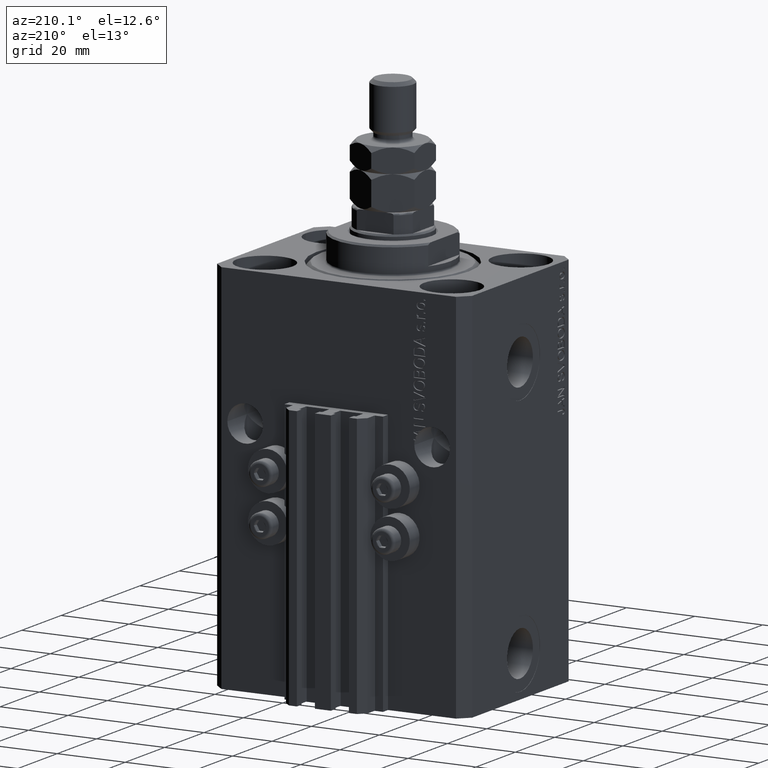
[diagram: clean part render]
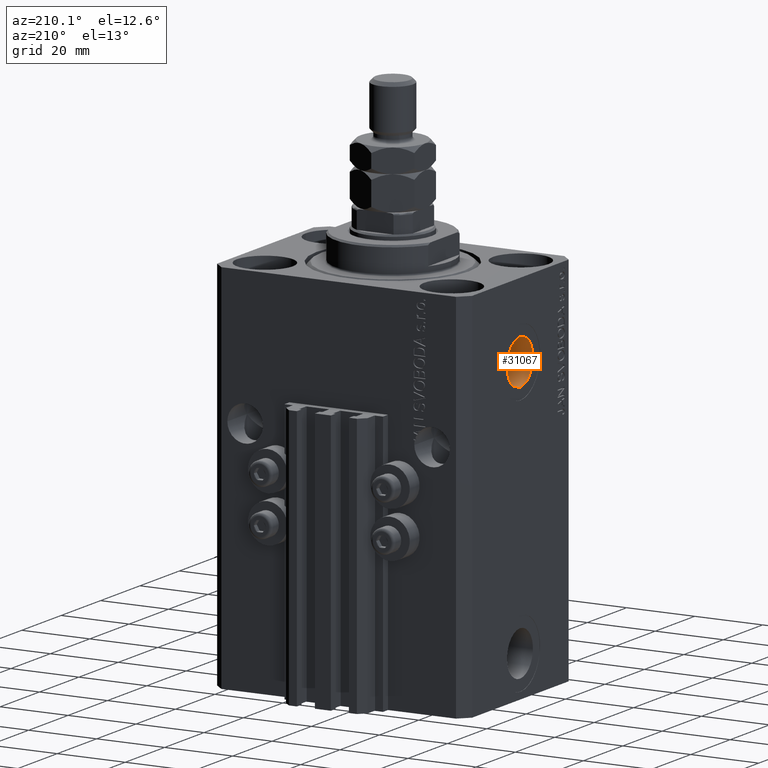
[diagram: same view with one face highlighted and labeled with its STEP entity id]
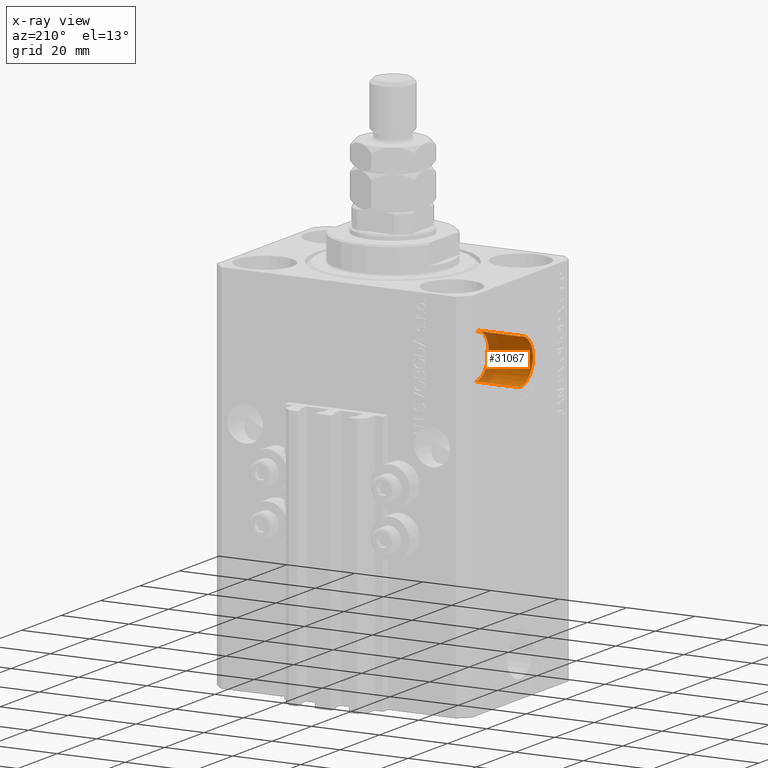
[diagram: x-ray of the same camera — body ghosted, the highlighted face saturated]
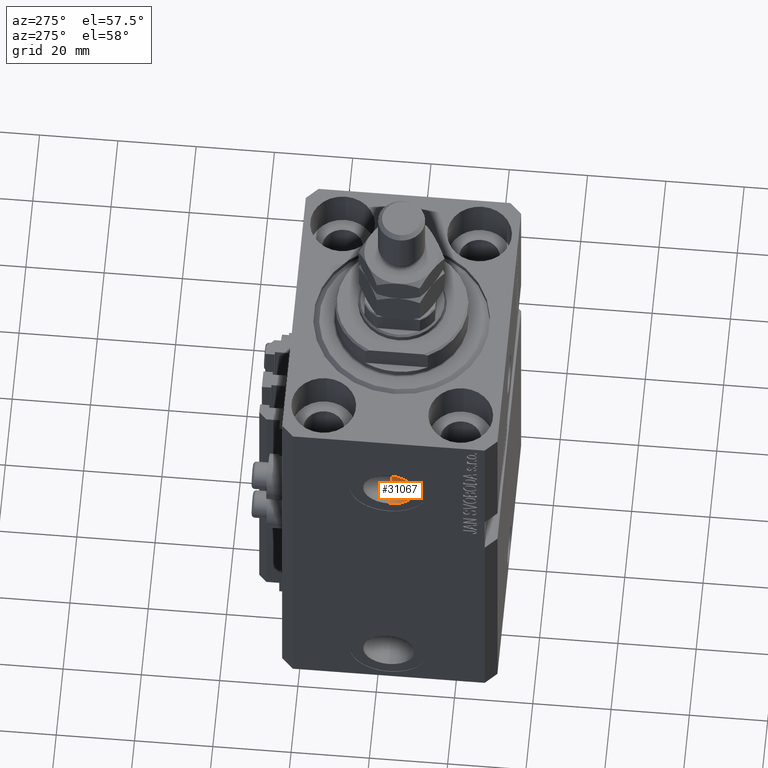
[diagram: same view with one face highlighted and labeled with its STEP entity id]
A machine part, auxiliary view. The second image highlights one B-rep face of the part: STEP entity #31067.
The next image is the same camera in x-ray: the body ghosted, the highlighted face saturated — about 24% of this face is hidden behind the body in this view.
A second angle (auxiliary view) of the same face is appended — the face is thin or edge-on in the first view.
In plain terms, the highlighted cylindrical surface (edge-blend (fillet) strip) has radius 6.58 mm, axis along (-1, -0, -0).
Its self-contained STEP definition (entity closure, byte-faithful):
#181 = VERTEX_POINT ( 'NONE', #19964 ) ;
#820 = LINE ( 'NONE', #1294, #2920 ) ;
#1294 = CARTESIAN_POINT ( 'NONE',  ( -24.39999999999999147, 0.000000000000000000, -15.41999999999999993 ) ) ;
#1414 = DIRECTION ( 'NONE',  ( 0.000000000000000000, 0.000000000000000000, 1.000000000000000000 ) ) ;
#2261 = ORIENTED_EDGE ( 'NONE', *, *, #7332, .F. ) ;
#2920 = VECTOR ( 'NONE', #4478, 1000.000000000000000 ) ;
#3086 = DIRECTION ( 'NONE',  ( -1.000000000000000000, -0.000000000000000000, -0.000000000000000000 ) ) ;
#4249 = VERTEX_POINT ( 'NONE', #14811 ) ;
#4478 = DIRECTION ( 'NONE',  ( -1.000000000000000000, -0.000000000000000000, -0.000000000000000000 ) ) ;
#7332 = EDGE_CURVE ( 'NONE', #4249, #181, #820, .T. ) ;
#7964 = EDGE_LOOP ( 'NONE', ( #40299, #16146, #16620, #2261 ) ) ;
#9047 = EDGE_CURVE ( 'NONE', #25853, #181, #23195, .T. ) ;
#13351 = CARTESIAN_POINT ( 'NONE',  ( -37.39999999999999147, 8.058175938389579572E-16, -28.57999999999999829 ) ) ;
#14811 = CARTESIAN_POINT ( 'NONE',  ( -24.39999999999999147, 0.000000000000000000, -15.41999999999999993 ) ) ;
#16146 = ORIENTED_EDGE ( 'NONE', *, *, #25497, .T. ) ;
#16620 = ORIENTED_EDGE ( 'NONE', *, *, #9047, .T. ) ;
#17748 = LINE ( 'NONE', #47613, #42115 ) ;
#18072 = AXIS2_PLACEMENT_3D ( 'NONE', #48353, #32719, #29517 ) ;
#19964 = CARTESIAN_POINT ( 'NONE',  ( -37.39999999999999147, 0.000000000000000000, -15.41999999999999993 ) ) ;
#23195 = CIRCLE ( 'NONE', #31778, 6.579999999999999183 ) ;
#24242 = VERTEX_POINT ( 'NONE', #33037 ) ;
#24664 = DIRECTION ( 'NONE',  ( -1.000000000000000000, 0.000000000000000000, 0.000000000000000000 ) ) ;
#25497 = EDGE_CURVE ( 'NONE', #24242, #25853, #17748, .T. ) ;
#25853 = VERTEX_POINT ( 'NONE', #13351 ) ;
#29041 = CYLINDRICAL_SURFACE ( 'NONE', #18072, 6.579999999999999183 ) ;
#29517 = DIRECTION ( 'NONE',  ( 0.000000000000000000, 0.000000000000000000, 1.000000000000000000 ) ) ;
#30032 = AXIS2_PLACEMENT_3D ( 'NONE', #46669, #35658, #1414 ) ;
#31067 = ADVANCED_FACE ( 'NONE', ( #48110 ), #29041, .F. ) ;
#31778 = AXIS2_PLACEMENT_3D ( 'NONE', #46447, #24664, #33142 ) ;
#32719 = DIRECTION ( 'NONE',  ( -1.000000000000000000, -0.000000000000000000, -0.000000000000000000 ) ) ;
#33037 = CARTESIAN_POINT ( 'NONE',  ( -24.39999999999999147, 8.058175938389579572E-16, -28.57999999999999829 ) ) ;
#33142 = DIRECTION ( 'NONE',  ( 0.000000000000000000, 0.000000000000000000, 1.000000000000000000 ) ) ;
#33915 = CIRCLE ( 'NONE', #30032, 6.579999999999999183 ) ;
#35658 = DIRECTION ( 'NONE',  ( -1.000000000000000000, 0.000000000000000000, 0.000000000000000000 ) ) ;
#39336 = EDGE_CURVE ( 'NONE', #24242, #4249, #33915, .T. ) ;
#40299 = ORIENTED_EDGE ( 'NONE', *, *, #39336, .F. ) ;
#42115 = VECTOR ( 'NONE', #3086, 1000.000000000000000 ) ;
#46447 = CARTESIAN_POINT ( 'NONE',  ( -37.39999999999999147, 0.000000000000000000, -22.00000000000000000 ) ) ;
#46669 = CARTESIAN_POINT ( 'NONE',  ( -24.39999999999999147, 0.000000000000000000, -22.00000000000000000 ) ) ;
#47613 = CARTESIAN_POINT ( 'NONE',  ( -24.39999999999999147, 8.058175938389580558E-16, -28.57999999999999829 ) ) ;
#48110 = FACE_OUTER_BOUND ( 'NONE', #7964, .T. ) ;
#48353 = CARTESIAN_POINT ( 'NONE',  ( -24.39999999999999147, 0.000000000000000000, -22.00000000000000000 ) ) ;